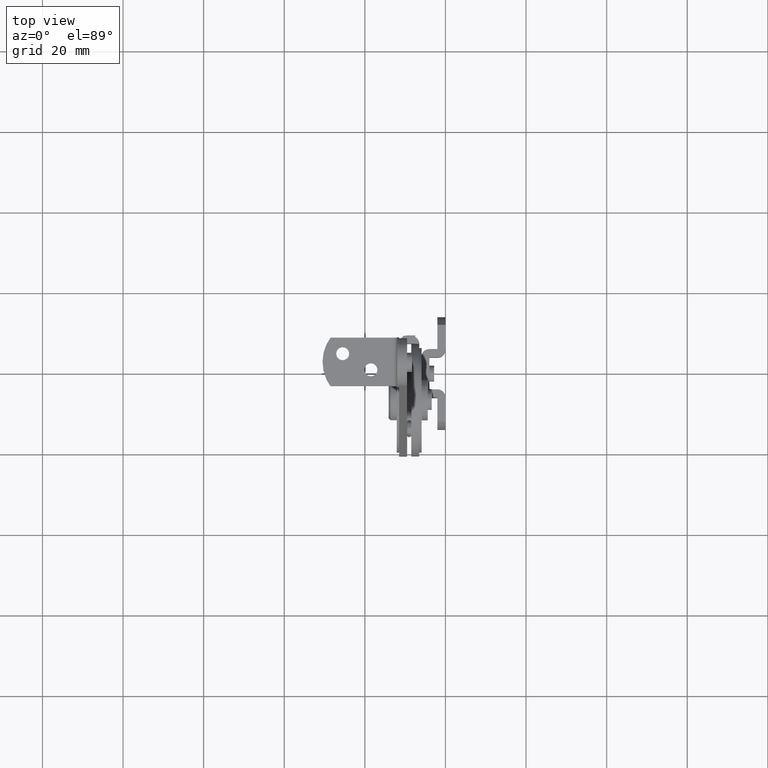
[diagram: clean part render]
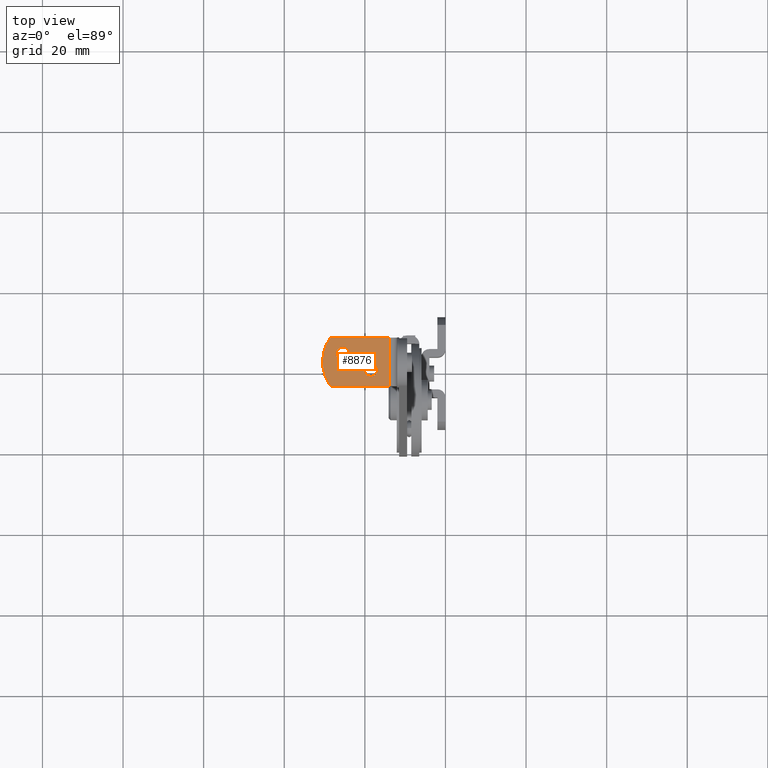
[diagram: same view with one face highlighted and labeled with its STEP entity id]
A machine part, top view. The second image highlights one B-rep face of the part: STEP entity #8876.
In plain terms, the highlighted face is a freeform B-spline surface patch.
Its self-contained STEP definition (entity closure, byte-faithful):
#8235=CARTESIAN_POINT('',(-18.374465446220221,-0.404932260096499,88.999984000000097));
#8236=VERTEX_POINT('',#8235);
#8242=CARTESIAN_POINT('',(-20.100000000000001,-2.0,88.999984000000097));
#8243=VERTEX_POINT('',#8242);
#8244=CARTESIAN_POINT('',(-18.374465446220224,-0.404932260096499,88.999984000000097));
#8245=CARTESIAN_POINT('',(-18.437135828639473,-0.400000000000000,88.999984000000097));
#8246=CARTESIAN_POINT('',(-18.500000000000000,-0.400000000000000,88.999984000000097));
#8247=CARTESIAN_POINT('',(-20.100000000000005,-0.400000000000000,88.999984000000083));
#8248=CARTESIAN_POINT('',(-20.100000000000001,-2.0,88.999984000000097));
#8256=(BOUNDED_CURVE()B_SPLINE_CURVE(2,(#8244,#8245,#8246,#8247,#8248),.UNSPECIFIED.,.F.,.U.)B_SPLINE_CURVE_WITH_KNOTS((3,2,3),(0.736331300601047,0.750000000000000,1.0),.UNSPECIFIED.)CURVE()GEOMETRIC_REPRESENTATION_ITEM()RATIONAL_B_SPLINE_CURVE((0.969723356105619,0.983986122544189,1.0,0.707106781186548,1.0))REPRESENTATION_ITEM(''));
#8257=EDGE_CURVE('',#8236,#8243,#8256,.T.);
#8259=CARTESIAN_POINT('',(-18.625534553779779,-3.595067739903501,88.999984000000097));
#8260=VERTEX_POINT('',#8259);
#8261=CARTESIAN_POINT('',(-20.100000000000001,-2.0,88.999984000000097));
#8262=CARTESIAN_POINT('',(-20.100000000000012,-3.479024786378616,88.999984000000083));
#8263=CARTESIAN_POINT('',(-18.625534553779776,-3.595067739903502,88.999984000000097));
#8271=(BOUNDED_CURVE()B_SPLINE_CURVE(2,(#8261,#8262,#8263),.UNSPECIFIED.,.F.,.U.)B_SPLINE_CURVE_WITH_KNOTS((3,3),(0.0,0.236331300601048),.UNSPECIFIED.)CURVE()GEOMETRIC_REPRESENTATION_ITEM()RATIONAL_B_SPLINE_CURVE((1.0,0.723120658642358,0.969723356105620))REPRESENTATION_ITEM(''));
#8272=EDGE_CURVE('',#8243,#8260,#8271,.T.);
#8302=CARTESIAN_POINT('',(-16.899999999999999,-2.0,88.999984000000097));
#8303=VERTEX_POINT('',#8302);
#8304=CARTESIAN_POINT('',(-18.625534553779779,-3.595067739903501,88.999984000000097));
#8305=CARTESIAN_POINT('',(-18.562864171360530,-3.600000000000000,88.999984000000097));
#8306=CARTESIAN_POINT('',(-18.500000000000000,-3.600000000000000,88.999984000000097));
#8307=CARTESIAN_POINT('',(-16.899999999999991,-3.600000000000000,88.999984000000083));
#8308=CARTESIAN_POINT('',(-16.899999999999999,-2.0,88.999984000000097));
#8316=(BOUNDED_CURVE()B_SPLINE_CURVE(2,(#8304,#8305,#8306,#8307,#8308),.UNSPECIFIED.,.F.,.U.)B_SPLINE_CURVE_WITH_KNOTS((3,2,3),(0.236331300601047,0.250000000000000,0.500000000000000),.UNSPECIFIED.)CURVE()GEOMETRIC_REPRESENTATION_ITEM()RATIONAL_B_SPLINE_CURVE((0.969723356105619,0.983986122544189,1.0,0.707106781186548,1.0))REPRESENTATION_ITEM(''));
#8317=EDGE_CURVE('',#8260,#8303,#8316,.T.);
#8319=CARTESIAN_POINT('',(-16.899999999999999,-2.0,88.999984000000097));
#8320=CARTESIAN_POINT('',(-16.900000000000006,-0.520975213621390,88.999984000000083));
#8321=CARTESIAN_POINT('',(-18.374465446220217,-0.404932260096499,88.999984000000097));
#8329=(BOUNDED_CURVE()B_SPLINE_CURVE(2,(#8319,#8320,#8321),.UNSPECIFIED.,.F.,.U.)B_SPLINE_CURVE_WITH_KNOTS((3,3),(0.500000000000000,0.736331300601047),.UNSPECIFIED.)CURVE()GEOMETRIC_REPRESENTATION_ITEM()RATIONAL_B_SPLINE_CURVE((1.0,0.723120658642359,0.969723356105618))REPRESENTATION_ITEM(''));
#8330=EDGE_CURVE('',#8303,#8236,#8329,.T.);
#8559=CARTESIAN_POINT('',(-25.374465446220221,3.595067739903501,88.999984000000097));
#8560=VERTEX_POINT('',#8559);
#8566=CARTESIAN_POINT('',(-27.100000000000001,2.0,88.999984000000097));
#8567=VERTEX_POINT('',#8566);
#8568=CARTESIAN_POINT('',(-25.374465446220224,3.595067739903501,88.999984000000097));
#8569=CARTESIAN_POINT('',(-25.437135828639473,3.600000000000000,88.999984000000097));
#8570=CARTESIAN_POINT('',(-25.500000000000000,3.600000000000000,88.999984000000097));
#8571=CARTESIAN_POINT('',(-27.100000000000001,3.600000000000000,88.999984000000083));
#8572=CARTESIAN_POINT('',(-27.100000000000001,2.0,88.999984000000097));
#8580=(BOUNDED_CURVE()B_SPLINE_CURVE(2,(#8568,#8569,#8570,#8571,#8572),.UNSPECIFIED.,.F.,.U.)B_SPLINE_CURVE_WITH_KNOTS((3,2,3),(0.736331300601048,0.750000000000000,1.0),.UNSPECIFIED.)CURVE()GEOMETRIC_REPRESENTATION_ITEM()RATIONAL_B_SPLINE_CURVE((0.969723356105620,0.983986122544189,1.0,0.707106781186548,1.0))REPRESENTATION_ITEM(''));
#8581=EDGE_CURVE('',#8560,#8567,#8580,.T.);
#8583=CARTESIAN_POINT('',(-25.625534553779779,0.404932260096499,88.999984000000083));
#8584=VERTEX_POINT('',#8583);
#8585=CARTESIAN_POINT('',(-27.100000000000001,2.0,88.999984000000097));
#8586=CARTESIAN_POINT('',(-27.099999999999994,0.520975213621386,88.999984000000097));
#8587=CARTESIAN_POINT('',(-25.625534553779783,0.404932260096499,88.999984000000083));
#8595=(BOUNDED_CURVE()B_SPLINE_CURVE(2,(#8585,#8586,#8587),.UNSPECIFIED.,.F.,.U.)B_SPLINE_CURVE_WITH_KNOTS((3,3),(0.0,0.236331300601048),.UNSPECIFIED.)CURVE()GEOMETRIC_REPRESENTATION_ITEM()RATIONAL_B_SPLINE_CURVE((1.0,0.723120658642358,0.969723356105619))REPRESENTATION_ITEM(''));
#8596=EDGE_CURVE('',#8567,#8584,#8595,.T.);
#8626=CARTESIAN_POINT('',(-23.899999999999999,2.0,88.999984000000097));
#8627=VERTEX_POINT('',#8626);
#8628=CARTESIAN_POINT('',(-25.625534553779779,0.404932260096499,88.999984000000083));
#8629=CARTESIAN_POINT('',(-25.562864171360527,0.400000000000000,88.999984000000111));
#8630=CARTESIAN_POINT('',(-25.500000000000000,0.400000000000000,88.999984000000097));
#8631=CARTESIAN_POINT('',(-23.899999999999991,0.400000000000000,88.999984000000083));
#8632=CARTESIAN_POINT('',(-23.899999999999999,2.0,88.999984000000097));
#8640=(BOUNDED_CURVE()B_SPLINE_CURVE(2,(#8628,#8629,#8630,#8631,#8632),.UNSPECIFIED.,.F.,.U.)B_SPLINE_CURVE_WITH_KNOTS((3,2,3),(0.236331300601047,0.250000000000000,0.500000000000000),.UNSPECIFIED.)CURVE()GEOMETRIC_REPRESENTATION_ITEM()RATIONAL_B_SPLINE_CURVE((0.969723356105619,0.983986122544189,1.0,0.707106781186548,1.0))REPRESENTATION_ITEM(''));
#8641=EDGE_CURVE('',#8584,#8627,#8640,.T.);
#8643=CARTESIAN_POINT('',(-23.899999999999999,2.0,88.999984000000097));
#8644=CARTESIAN_POINT('',(-23.899999999999999,3.479024786378611,88.999984000000083));
#8645=CARTESIAN_POINT('',(-25.374465446220217,3.595067739903502,88.999984000000097));
#8653=(BOUNDED_CURVE()B_SPLINE_CURVE(2,(#8643,#8644,#8645),.UNSPECIFIED.,.F.,.U.)B_SPLINE_CURVE_WITH_KNOTS((3,3),(0.500000000000000,0.736331300601047),.UNSPECIFIED.)CURVE()GEOMETRIC_REPRESENTATION_ITEM()RATIONAL_B_SPLINE_CURVE((1.0,0.723120658642359,0.969723356105618))REPRESENTATION_ITEM(''));
#8654=EDGE_CURVE('',#8627,#8560,#8653,.T.);
#8737=CARTESIAN_POINT('',(-28.500000000000000,6.0,88.999984000000097));
#8738=VERTEX_POINT('',#8737);
#8739=CARTESIAN_POINT('',(-28.500000000000000,-6.0,88.999984000000097));
#8740=VERTEX_POINT('',#8739);
#8741=CARTESIAN_POINT('',(-28.500000000000000,6.0,88.999984000000097));
#8742=CARTESIAN_POINT('',(-33.0,8.673617E-016,88.999984000000083));
#8743=CARTESIAN_POINT('',(-28.500000000000000,-5.999999999999997,88.999984000000097));
#8751=(BOUNDED_CURVE()B_SPLINE_CURVE(2,(#8741,#8742,#8743),.UNSPECIFIED.,.F.,.U.)CURVE()GEOMETRIC_REPRESENTATION_ITEM()QUASI_UNIFORM_CURVE()RATIONAL_B_SPLINE_CURVE((1.0,0.800000000000000,1.0))REPRESENTATION_ITEM(''));
#8752=EDGE_CURVE('',#8738,#8740,#8751,.T.);
#8800=CARTESIAN_POINT('',(-14.000000211915101,6.0,88.999984000000097));
#8801=VERTEX_POINT('',#8800);
#8815=CARTESIAN_POINT('',(-14.000000211915101,-6.0,88.999984000000097));
#8816=VERTEX_POINT('',#8815);
#8817=CARTESIAN_POINT('',(-14.000000211915101,-6.0,88.999984000000097));
#8818=CARTESIAN_POINT('',(-14.000000211915101,6.0,88.999984000000097));
#8819=QUASI_UNIFORM_CURVE('',1,(#8817,#8818),.UNSPECIFIED.,.F.,.U.);
#8820=EDGE_CURVE('',#8816,#8801,#8819,.T.);
#8845=CARTESIAN_POINT('',(-31.324174957434401,-6.599399976741672,88.999984000000097));
#8846=CARTESIAN_POINT('',(-13.175824811915991,-6.599399976741672,88.999984000000097));
#8847=CARTESIAN_POINT('',(-31.324174957434401,6.599400298606754,88.999984000000097));
#8848=CARTESIAN_POINT('',(-13.175824811915991,6.599400298606754,88.999984000000097));
#8849=B_SPLINE_SURFACE_WITH_KNOTS('',1,1,((#8845,#8847),(#8846,#8848)),.UNSPECIFIED.,.F.,.F.,.U.,(2,2),(2,2),(0.0,18.148350145518410),(0.0,13.198800275348431),.UNSPECIFIED.);
#8850=CARTESIAN_POINT('',(-14.000000211915101,-6.0,88.999984000000097));
#8851=CARTESIAN_POINT('',(-28.500000000000000,-6.0,88.999984000000097));
#8852=QUASI_UNIFORM_CURVE('',1,(#8850,#8851),.UNSPECIFIED.,.F.,.U.);
#8853=EDGE_CURVE('',#8816,#8740,#8852,.T.);
#8854=ORIENTED_EDGE('',*,*,#8853,.F.);
#8855=ORIENTED_EDGE('',*,*,#8820,.T.);
#8856=CARTESIAN_POINT('',(-14.000000211915101,6.0,88.999984000000097));
#8857=CARTESIAN_POINT('',(-28.500000000000000,6.0,88.999984000000097));
#8858=QUASI_UNIFORM_CURVE('',1,(#8856,#8857),.UNSPECIFIED.,.F.,.U.);
#8859=EDGE_CURVE('',#8801,#8738,#8858,.T.);
#8860=ORIENTED_EDGE('',*,*,#8859,.T.);
#8861=ORIENTED_EDGE('',*,*,#8752,.T.);
#8862=EDGE_LOOP('',(#8854,#8855,#8860,#8861));
#8863=FACE_OUTER_BOUND('',#8862,.T.);
#8864=ORIENTED_EDGE('',*,*,#8654,.F.);
#8865=ORIENTED_EDGE('',*,*,#8641,.F.);
#8866=ORIENTED_EDGE('',*,*,#8596,.F.);
#8867=ORIENTED_EDGE('',*,*,#8581,.F.);
#8868=EDGE_LOOP('',(#8864,#8865,#8866,#8867));
#8869=FACE_BOUND('',#8868,.T.);
#8870=ORIENTED_EDGE('',*,*,#8330,.F.);
#8871=ORIENTED_EDGE('',*,*,#8317,.F.);
#8872=ORIENTED_EDGE('',*,*,#8272,.F.);
#8873=ORIENTED_EDGE('',*,*,#8257,.F.);
#8874=EDGE_LOOP('',(#8870,#8871,#8872,#8873));
#8875=FACE_BOUND('',#8874,.T.);
#8876=ADVANCED_FACE('',(#8863,#8869,#8875),#8849,.T.);